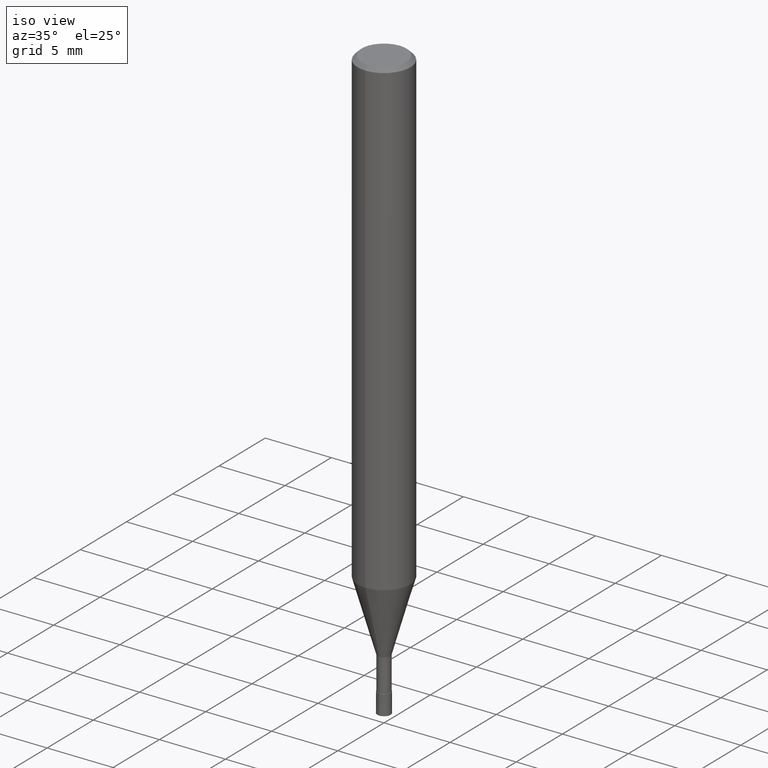
[diagram: clean part render]
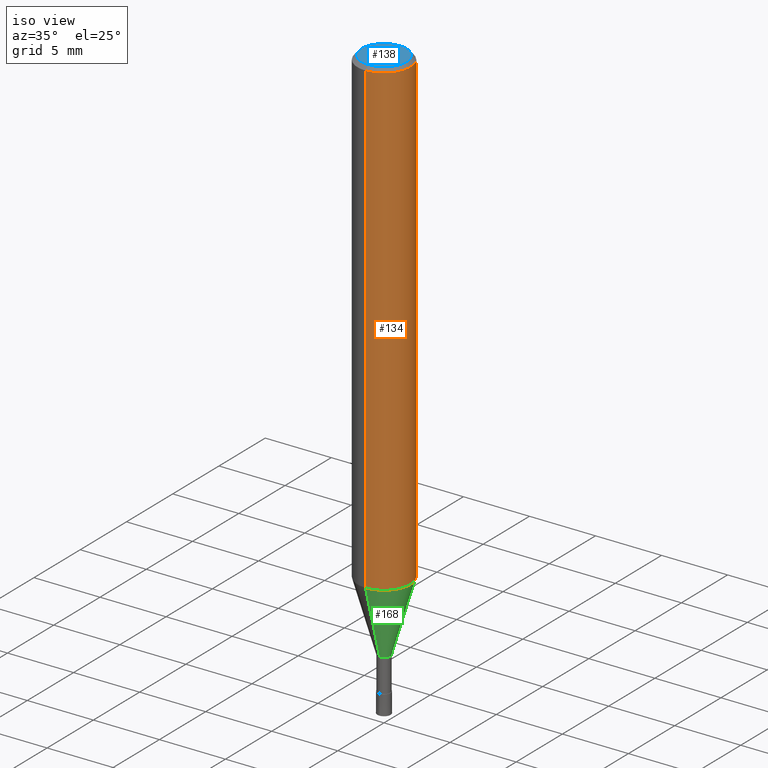
[diagram: same view with three faces highlighted in distinct colors, each labeled with its STEP entity id]
A machine part, iso view with three faces highlighted in distinct colors.
Their STEP definitions:

[orange] entity #134 — the highlighted cylindrical surface (edge-blend (fillet) strip) has radius 2 mm, axis along (-0, -0, 1).
#94=VERTEX_POINT('',#232);
#96=EDGE_CURVE('',#94,#188,#234,.T.);
#100=VERTEX_POINT('',#238);
#102=EDGE_CURVE('',#188,#100,#240,.T.);
#122=EDGE_CURVE('',#94,#190,#262,.T.);
#134=ADVANCED_FACE('',(#276),#277,.T.);
#188=VERTEX_POINT('',#337);
#190=VERTEX_POINT('',#339);
#198=EDGE_CURVE('',#100,#190,#348,.T.);
#232=CARTESIAN_POINT('',(0.0,2.0,-0.299999999999997));
#234=LINE('',#380,#381);
#238=CARTESIAN_POINT('',(2.44921270764475E-016,-2.0,-35.682));
#240=CIRCLE('',#388,2.0);
#262=CIRCLE('',#415,2.0);
#276=FACE_OUTER_BOUND('',#434,.T.);
#277=CYLINDRICAL_SURFACE('',#435,2.0);
#337=CARTESIAN_POINT('',(0.0,2.0,-35.682));
#339=CARTESIAN_POINT('',(2.44921270764475E-016,-2.0,-0.299999999999997));
#348=LINE('',#524,#525);
#380=CARTESIAN_POINT('',(-2.44921270764475E-016,2.0,-17.991));
#381=VECTOR('',#550,1.0);
#388=AXIS2_PLACEMENT_3D('',#551,#552,#553);
#415=AXIS2_PLACEMENT_3D('',#580,#581,#582);
#434=EDGE_LOOP('',(#603,#604,#605,#606));
#435=AXIS2_PLACEMENT_3D('',#607,#608,#609);
#524=CARTESIAN_POINT('',(2.44921270764475E-016,-2.0,-17.991));
#525=VECTOR('',#696,1.0);
#550=DIRECTION('',(0.0,0.0,-1.0));
#551=CARTESIAN_POINT('',(0.0,0.0,-35.682));
#552=DIRECTION('',(0.0,0.0,-1.0));
#553=DIRECTION('',(0.0,1.0,0.0));
#580=CARTESIAN_POINT('',(0.0,0.0,-0.299999999999997));
#581=DIRECTION('',(0.0,0.0,-1.0));
#582=DIRECTION('',(0.0,1.0,0.0));
#603=ORIENTED_EDGE('',*,*,#96,.F.);
#604=ORIENTED_EDGE('',*,*,#122,.T.);
#605=ORIENTED_EDGE('',*,*,#198,.F.);
#606=ORIENTED_EDGE('',*,*,#102,.F.);
#607=CARTESIAN_POINT('',(0.0,0.0,-17.991));
#608=DIRECTION('',(-0.0,-0.0,1.0));
#609=DIRECTION('',(0.0,1.0,0.0));
#696=DIRECTION('',(-0.0,-0.0,1.0));

[blue] entity #138 — the highlighted planar face has unit normal (-0, 0, 1).
#104=VERTEX_POINT('',#242);
#138=ADVANCED_FACE('',(#281),#282,.T.);
#140=VERTEX_POINT('',#284);
#154=EDGE_CURVE('',#140,#104,#299,.T.);
#192=EDGE_CURVE('',#104,#140,#341,.T.);
#242=CARTESIAN_POINT('',(0.0,1.7,0.0));
#281=FACE_OUTER_BOUND('',#439,.T.);
#282=PLANE('',#440);
#284=CARTESIAN_POINT('',(2.08183080149804E-016,-1.7,0.0));
#299=CIRCLE('',#464,1.7);
#341=CIRCLE('',#515,1.7);
#439=EDGE_LOOP('',(#611,#612));
#440=AXIS2_PLACEMENT_3D('',#613,#614,#615);
#464=AXIS2_PLACEMENT_3D('',#632,#633,#634);
#515=AXIS2_PLACEMENT_3D('',#682,#683,#684);
#611=ORIENTED_EDGE('',*,*,#192,.F.);
#612=ORIENTED_EDGE('',*,*,#154,.F.);
#613=CARTESIAN_POINT('',(0.0,0.85,0.0));
#614=DIRECTION('',(-0.0,0.0,1.0));
#615=DIRECTION('',(0.0,-1.0,0.0));
#632=CARTESIAN_POINT('',(0.0,0.0,0.0));
#633=DIRECTION('',(0.0,0.0,-1.0));
#634=DIRECTION('',(0.0,1.0,0.0));
#682=CARTESIAN_POINT('',(0.0,0.0,0.0));
#683=DIRECTION('',(0.0,0.0,-1.0));
#684=DIRECTION('',(0.0,1.0,0.0));

[green] entity #168 — the highlighted conical surface has half-angle 16.001 deg.
#112=VERTEX_POINT('',#251);
#114=EDGE_CURVE('',#204,#152,#253,.T.);
#124=EDGE_CURVE('',#204,#112,#264,.T.);
#148=EDGE_CURVE('',#170,#152,#293,.T.);
#152=VERTEX_POINT('',#297);
#168=ADVANCED_FACE('',(#315),#316,.T.);
#170=VERTEX_POINT('',#318);
#176=EDGE_CURVE('',#112,#170,#324,.T.);
#204=VERTEX_POINT('',#356);
#251=CARTESIAN_POINT('',(0.0,0.47495,-41.0));
#253=CIRCLE('',#404,1.99995);
#264=LINE('',#418,#419);
#293=LINE('',#455,#456);
#297=CARTESIAN_POINT('',(2.44915147732706E-016,-1.99995,-35.682));
#315=FACE_OUTER_BOUND('',#482,.T.);
#316=CONICAL_SURFACE('',#483,1.23745,0.279267977304115);
#318=CARTESIAN_POINT('',(5.81626787747938E-017,-0.47495,-41.0));
#324=CIRCLE('',#494,0.47495);
#356=CARTESIAN_POINT('',(0.0,1.99995,-35.682));
#404=AXIS2_PLACEMENT_3D('',#568,#569,#570);
#418=CARTESIAN_POINT('',(-1.5153891325375E-016,1.23745,-38.341));
#419=VECTOR('',#583,1.0);
#455=CARTESIAN_POINT('',(1.5153891325375E-016,-1.23745,-38.341));
#456=VECTOR('',#628,1.0);
#482=EDGE_LOOP('',(#662,#663,#664,#665));
#483=AXIS2_PLACEMENT_3D('',#666,#667,#668);
#494=AXIS2_PLACEMENT_3D('',#670,#671,#672);
#568=CARTESIAN_POINT('',(0.0,0.0,-35.682));
#569=DIRECTION('',(0.0,0.0,-1.0));
#570=DIRECTION('',(0.0,1.0,0.0));
#583=DIRECTION('',(3.37565264353533E-017,-0.275652060190515,-0.961257479405349));
#628=DIRECTION('',(3.37565264353533E-017,-0.275652060190515,0.961257479405349));
#662=ORIENTED_EDGE('',*,*,#124,.F.);
#663=ORIENTED_EDGE('',*,*,#114,.T.);
#664=ORIENTED_EDGE('',*,*,#148,.F.);
#665=ORIENTED_EDGE('',*,*,#176,.F.);
#666=CARTESIAN_POINT('',(0.0,0.0,-38.341));
#667=DIRECTION('',(-0.0,-0.0,1.0));
#668=DIRECTION('',(0.0,1.0,0.0));
#670=CARTESIAN_POINT('',(0.0,0.0,-41.0));
#671=DIRECTION('',(0.0,0.0,-1.0));
#672=DIRECTION('',(0.0,1.0,0.0));